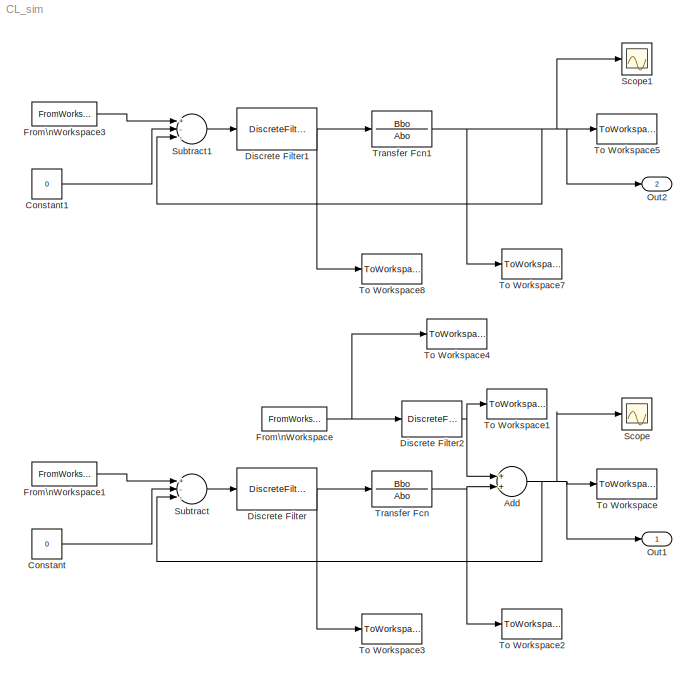
MODEL CL_sim
KIND model
BLOCK [Sum] Add
  InputSameDT = off
  OutDataType = sfix(16)
  OutDataTypeMode = Inherit via internal rule
  OutDataTypeStr = Inherit: Inherit via internal rule
  OutScaling = 2^-10
  Ports = [2, 1]
  SaturateOnIntegerOverflow = off
BLOCK [Constant] Constant
  OutDataType = sfix(16)
  OutScaling = 2^0
  Value = 0
BLOCK [Constant] Constant1
  OutDataType = sfix(16)
  OutScaling = 2^0
  Value = 0
BLOCK [DiscreteFilter] Discrete Filter
  Denominator = QQ(1:end-1)
  Numerator = PQ
  Ports = [1, 1]
  SampleTime = Tsd
BLOCK [DiscreteFilter] Discrete Filter1
  Denominator = QQ(1:end-1)
  Numerator = PQ
  Ports = [1, 1]
  SampleTime = Tsd
BLOCK [DiscreteFilter] Discrete Filter2
  Denominator = [1 -0.85]
  Numerator = [1 0.5]
  Ports = [1, 1]
  SampleTime = Tss
BLOCK [FromWorkspace] From\nWorkspace
  SampleTime = Tss
  VariableName = [t er]
  ZeroCross = on
BLOCK [FromWorkspace] From\nWorkspace1
  SampleTime = Tss
  VariableName = [t r]
  ZeroCross = on
BLOCK [FromWorkspace] From\nWorkspace3
  SampleTime = Tss
  VariableName = [t r]
  ZeroCross = on
BLOCK [Outport] Out1
  IconDisplay = Port number
  OutDataType = sfix(16)
  OutScaling = 2^0
BLOCK [Outport] Out2
  IconDisplay = Port number
  OutDataType = sfix(16)
  OutScaling = 2^0
  Port = 2
BLOCK [Scope] Scope
  DataFormat = StructureWithTime
  Floating = off
  NumInputPorts = 1
  Ports = [1]
  SampleTime = 0
BLOCK [Scope] Scope1
  DataFormat = StructureWithTime
  Floating = off
  NumInputPorts = 1
  Ports = [1]
  SampleTime = 0
  SaveName = ScopeData1
BLOCK [Sum] Subtract
  InputSameDT = off
  Inputs = +--
  OutDataType = sfix(16)
  OutDataTypeMode = Inherit via internal rule
  OutDataTypeStr = Inherit: Inherit via internal rule
  OutScaling = 2^-10
  Ports = [3, 1]
  SaturateOnIntegerOverflow = off
BLOCK [Sum] Subtract1
  InputSameDT = off
  Inputs = +--
  OutDataType = sfix(16)
  OutDataTypeMode = Inherit via internal rule
  OutDataTypeStr = Inherit: Inherit via internal rule
  OutScaling = 2^-10
  Ports = [3, 1]
  SaturateOnIntegerOverflow = off
BLOCK [ToWorkspace] To Workspace
  MaxDataPoints = inf
  SampleTime = Tss
  SaveFormat = Array
  VariableName = y
BLOCK [ToWorkspace] To Workspace1
  MaxDataPoints = inf
  SampleTime = Tss
  SaveFormat = Array
  VariableName = cn
BLOCK [ToWorkspace] To Workspace2
  MaxDataPoints = inf
  SampleTime = Tss
  SaveFormat = Array
  VariableName = xn
BLOCK [ToWorkspace] To Workspace3
  MaxDataPoints = inf
  SampleTime = Tss
  SaveFormat = Array
  VariableName = un
BLOCK [ToWorkspace] To Workspace4
  MaxDataPoints = inf
  SampleTime = Tss
  SaveFormat = Array
  VariableName = wn
BLOCK [ToWorkspace] To Workspace5
  MaxDataPoints = inf
  SampleTime = Tss
  SaveFormat = Array
  VariableName = ynf
BLOCK [ToWorkspace] To Workspace7
  MaxDataPoints = inf
  SampleTime = Tss
  SaveFormat = Array
  VariableName = xnf
BLOCK [ToWorkspace] To Workspace8
  MaxDataPoints = inf
  SampleTime = Tss
  SaveFormat = Array
  VariableName = unf
BLOCK [TransferFcn] Transfer Fcn
  Denominator = Abo
  Numerator = Bbo
BLOCK [TransferFcn] Transfer Fcn1
  Denominator = Abo
  Numerator = Bbo
NET Add:1 -> Out1:1, Scope:1, Subtract:3, To Workspace:1
LINE Constant1:1 -> Subtract1:2
LINE Constant:1 -> Subtract:2
NET Discrete Filter1:1 -> To Workspace8:1, Transfer Fcn1:1
NET Discrete Filter2:1 -> Add:1, To Workspace1:1
NET Discrete Filter:1 -> To Workspace3:1, Transfer Fcn:1
LINE From\nWorkspace1:1 -> Subtract:1
LINE From\nWorkspace3:1 -> Subtract1:1
NET From\nWorkspace:1 -> Discrete Filter2:1, To Workspace4:1
LINE Subtract1:1 -> Discrete Filter1:1
LINE Subtract:1 -> Discrete Filter:1
NET Transfer Fcn1:1 -> Out2:1, Scope1:1, Subtract1:3, To Workspace5:1, To Workspace7:1
NET Transfer Fcn:1 -> Add:2, To Workspace2:1
note: NET lines group one-source signal fan-out (src -> all destinations, sorted); 1:1 wires keep LINE
